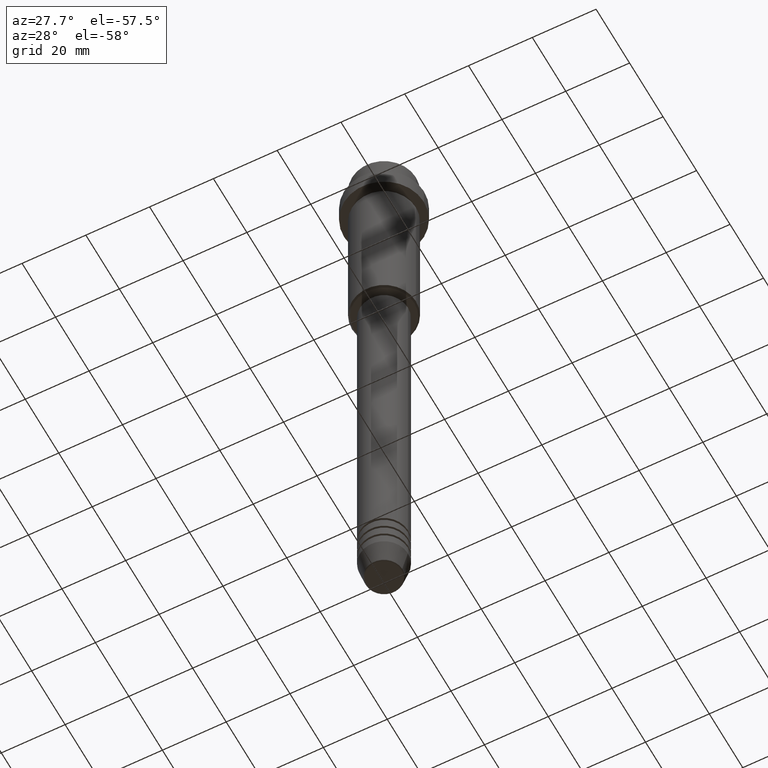
[diagram: clean part render]
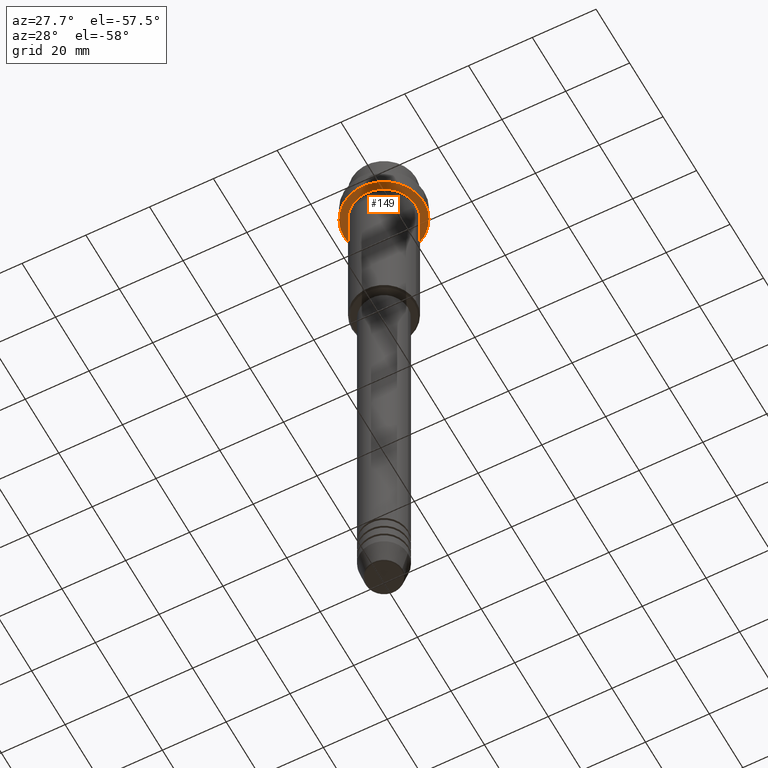
[diagram: same view with one face highlighted and labeled with its STEP entity id]
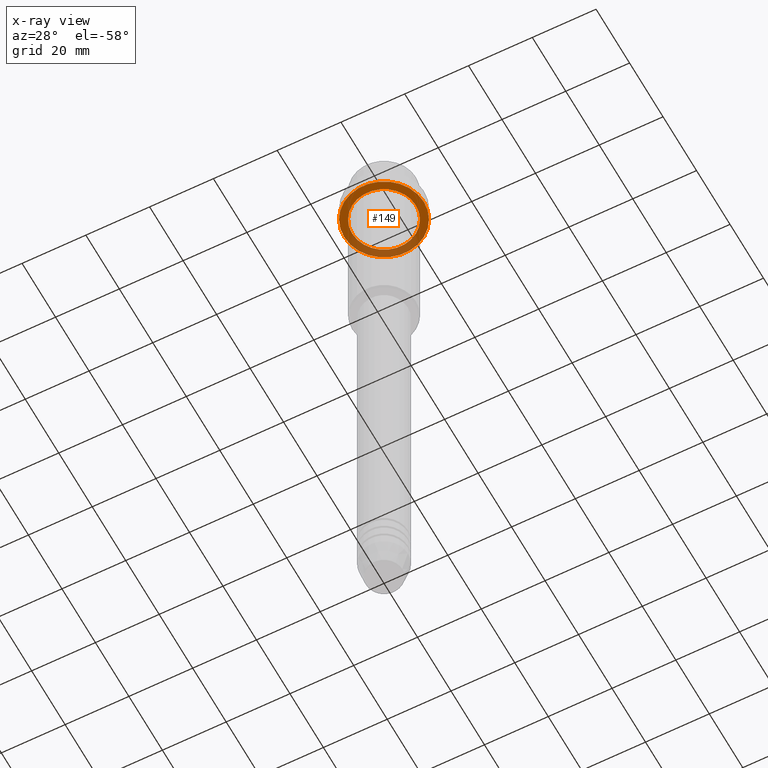
[diagram: x-ray of the same camera — body ghosted, the highlighted face saturated]
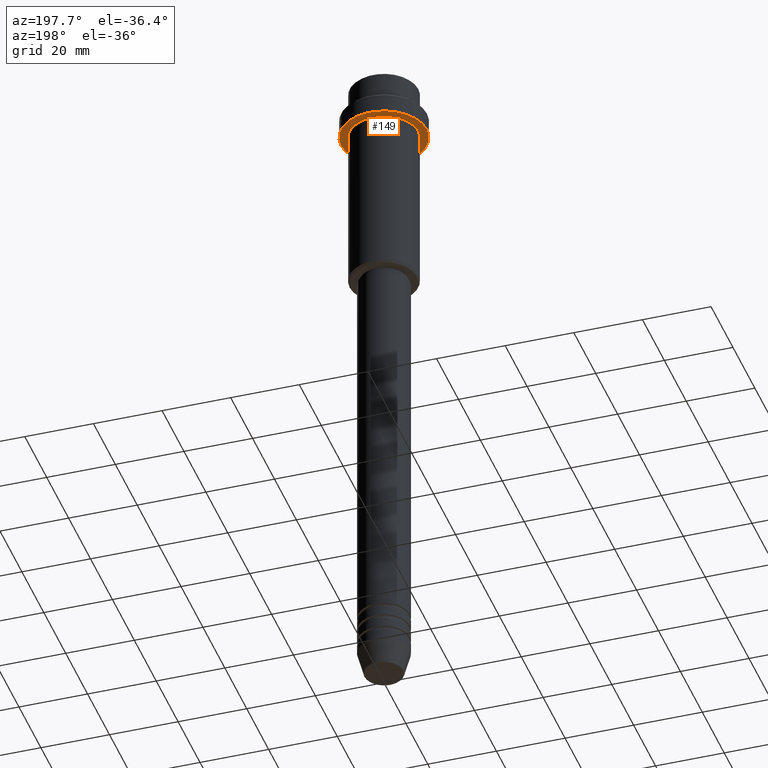
[diagram: same view with one face highlighted and labeled with its STEP entity id]
A machine part, auxiliary view. The second image highlights one B-rep face of the part: STEP entity #149.
The next image is the same camera in x-ray: the body ghosted, the highlighted face saturated — about 31% of this face is hidden behind the body in this view.
A second angle (auxiliary view) of the same face is appended — the face is thin or edge-on in the first view.
In plain terms, the highlighted planar face has unit normal (0, 0, -1).
Its self-contained STEP definition (entity closure, byte-faithful):
#34 = DIRECTION ( 'NONE',  ( -1.000000000000000000, 0.000000000000000000, -0.000000000000000000 ) ) ;
#54 = PLANE ( 'NONE',  #107 ) ;
#70 = CARTESIAN_POINT ( 'NONE',  ( 9.999999999999992895, 1.224646799147352468E-15, -15.00000000000000000 ) ) ;
#78 = CARTESIAN_POINT ( 'NONE',  ( 0.000000000000000000, 0.000000000000000000, -15.00000000000000000 ) ) ;
#79 = EDGE_CURVE ( 'NONE', #1314, #623, #927, .T. ) ;
#107 = AXIS2_PLACEMENT_3D ( 'NONE', #688, #141, #34 ) ;
#141 = DIRECTION ( 'NONE',  ( 0.000000000000000000, 0.000000000000000000, -1.000000000000000000 ) ) ;
#149 = ADVANCED_FACE ( 'NONE', ( #681, #156 ), #54, .T. ) ;
#156 = FACE_OUTER_BOUND ( 'NONE', #211, .T. ) ;
#192 = AXIS2_PLACEMENT_3D ( 'NONE', #747, #981, #303 ) ;
#211 = EDGE_LOOP ( 'NONE', ( #553, #547 ) ) ;
#257 = VERTEX_POINT ( 'NONE', #1260 ) ;
#272 = VERTEX_POINT ( 'NONE', #70 ) ;
#303 = DIRECTION ( 'NONE',  ( 1.000000000000000000, 0.000000000000000000, 0.000000000000000000 ) ) ;
#316 = AXIS2_PLACEMENT_3D ( 'NONE', #912, #571, #1238 ) ;
#367 = EDGE_CURVE ( 'NONE', #257, #272, #472, .T. ) ;
#437 = DIRECTION ( 'NONE',  ( -1.000000000000000000, 0.000000000000000000, 0.000000000000000000 ) ) ;
#446 = ORIENTED_EDGE ( 'NONE', *, *, #367, .T. ) ;
#472 = CIRCLE ( 'NONE', #1247, 9.999999999999992895 ) ;
#529 = CARTESIAN_POINT ( 'NONE',  ( -12.50000000000000000, 1.530808498934191521E-15, -15.00000000000000000 ) ) ;
#547 = ORIENTED_EDGE ( 'NONE', *, *, #79, .F. ) ;
#553 = ORIENTED_EDGE ( 'NONE', *, *, #795, .F. ) ;
#571 = DIRECTION ( 'NONE',  ( -0.000000000000000000, -0.000000000000000000, 1.000000000000000000 ) ) ;
#606 = CIRCLE ( 'NONE', #782, 9.999999999999992895 ) ;
#623 = VERTEX_POINT ( 'NONE', #698 ) ;
#665 = DIRECTION ( 'NONE',  ( -0.000000000000000000, -0.000000000000000000, 1.000000000000000000 ) ) ;
#681 = FACE_BOUND ( 'NONE', #744, .T. ) ;
#688 = CARTESIAN_POINT ( 'NONE',  ( 0.000000000000000000, 12.50000000000000000, -15.00000000000000000 ) ) ;
#698 = CARTESIAN_POINT ( 'NONE',  ( 12.50000000000000000, 0.000000000000000000, -15.00000000000000000 ) ) ;
#738 = CIRCLE ( 'NONE', #192, 12.50000000000000000 ) ;
#744 = EDGE_LOOP ( 'NONE', ( #446, #765 ) ) ;
#747 = CARTESIAN_POINT ( 'NONE',  ( 0.000000000000000000, 0.000000000000000000, -15.00000000000000000 ) ) ;
#765 = ORIENTED_EDGE ( 'NONE', *, *, #1045, .T. ) ;
#782 = AXIS2_PLACEMENT_3D ( 'NONE', #78, #830, #798 ) ;
#795 = EDGE_CURVE ( 'NONE', #623, #1314, #738, .T. ) ;
#798 = DIRECTION ( 'NONE',  ( -1.000000000000000000, 0.000000000000000000, 0.000000000000000000 ) ) ;
#830 = DIRECTION ( 'NONE',  ( -0.000000000000000000, -0.000000000000000000, 1.000000000000000000 ) ) ;
#912 = CARTESIAN_POINT ( 'NONE',  ( 0.000000000000000000, 0.000000000000000000, -15.00000000000000000 ) ) ;
#927 = CIRCLE ( 'NONE', #316, 12.50000000000000000 ) ;
#981 = DIRECTION ( 'NONE',  ( -0.000000000000000000, -0.000000000000000000, 1.000000000000000000 ) ) ;
#985 = CARTESIAN_POINT ( 'NONE',  ( 0.000000000000000000, 0.000000000000000000, -15.00000000000000000 ) ) ;
#1045 = EDGE_CURVE ( 'NONE', #272, #257, #606, .T. ) ;
#1238 = DIRECTION ( 'NONE',  ( 1.000000000000000000, 0.000000000000000000, 0.000000000000000000 ) ) ;
#1247 = AXIS2_PLACEMENT_3D ( 'NONE', #985, #665, #437 ) ;
#1260 = CARTESIAN_POINT ( 'NONE',  ( -9.999999999999992895, 0.000000000000000000, -15.00000000000000000 ) ) ;
#1314 = VERTEX_POINT ( 'NONE', #529 ) ;